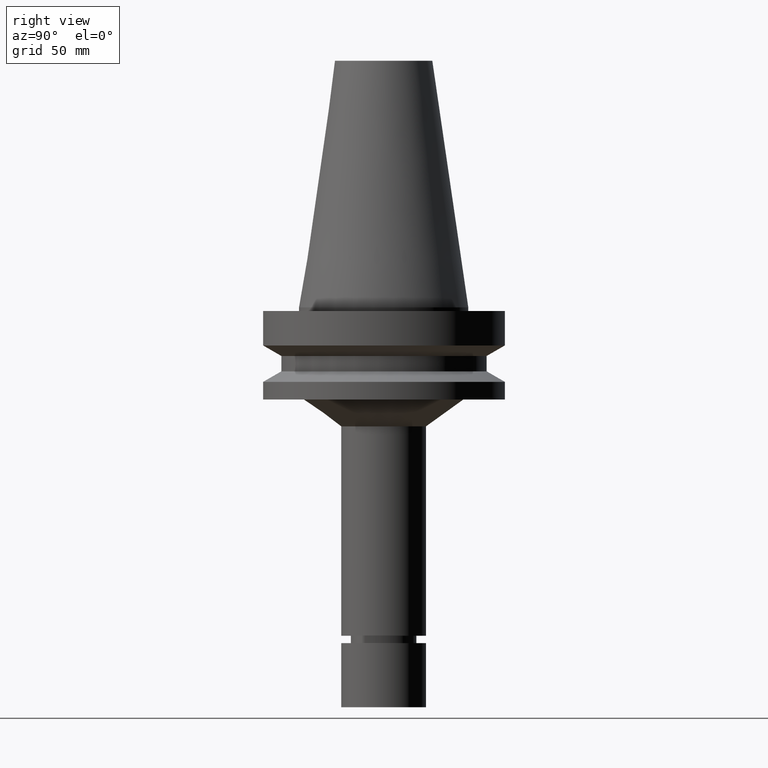
[diagram: clean part render]
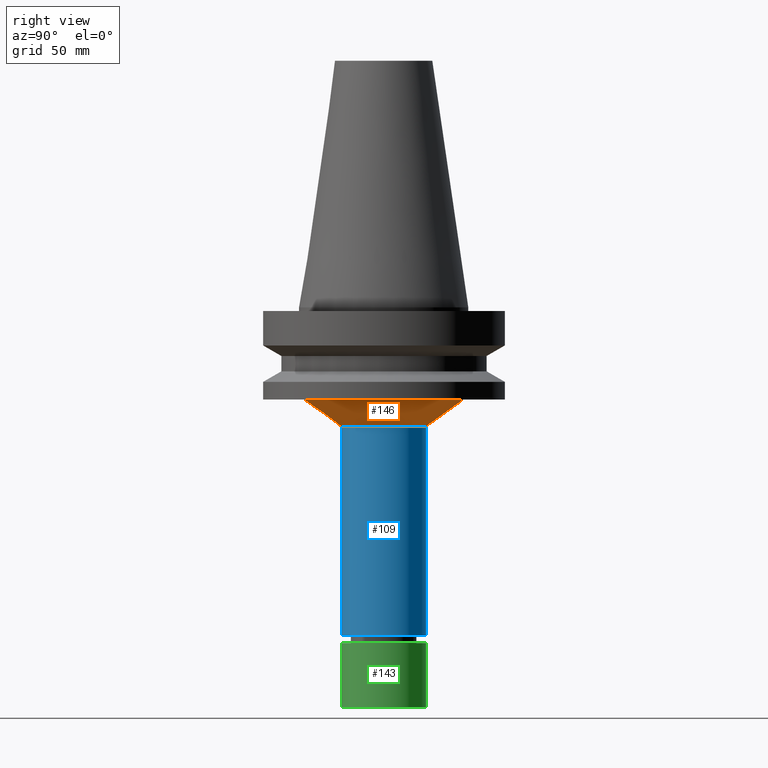
[diagram: same view with three faces highlighted in distinct colors, each labeled with its STEP entity id]
A machine part, right view with three faces highlighted in distinct colors.
Their STEP definitions:

[orange] entity #146 — the highlighted conical surface has half-angle 54.238 deg.
#98=EDGE_CURVE('Unnamed[1]',#237,#237,#238,.T.);
#134=EDGE_CURVE('Unnamed[1]',#291,#291,#292,.T.);
#146=ADVANCED_FACE('Unnamed[1]',(#309,#310),#311,.T.);
#237=VERTEX_POINT('',#422);
#238=CIRCLE('',#423,17.5000000000006);
#291=VERTEX_POINT('',#489);
#292=CIRCLE('',#490,32.8637797684183);
#309=FACE_BOUND('',#512,.T.);
#310=FACE_BOUND('',#513,.T.);
#311=CONICAL_SURFACE('',#514,25.1818898842094,0.946630035979765);
#422=CARTESIAN_POINT('',(3.00438088139649E-015,17.5000000000006,-49.0652632822501));
#423=AXIS2_PLACEMENT_3D('',#621,#622,#623);
#489=CARTESIAN_POINT('',(2.32682891837996E-015,32.8637797684183,-37.9999999999998));
#490=AXIS2_PLACEMENT_3D('',#680,#681,#682);
#512=EDGE_LOOP('',(#699));
#513=EDGE_LOOP('',(#700));
#514=AXIS2_PLACEMENT_3D('',#701,#702,#703);
#621=CARTESIAN_POINT('',(3.00438088139649E-015,1.71454033549596E-014,-49.0652632822501));
#622=DIRECTION('',(-6.12323399573676E-017,-2.7226584676657E-017,1.0));
#623=DIRECTION('',(-6.4943002195663E-033,1.0,2.7226584676657E-017));
#680=CARTESIAN_POINT('',(2.32682891837996E-015,1.68441340272361E-014,-37.9999999999998));
#681=DIRECTION('',(-6.12323399573676E-017,-2.72265846766754E-017,1.0));
#682=DIRECTION('',(-6.49430021957116E-033,1.0,2.72265846766754E-017));
#699=ORIENTED_EDGE('',*,*,#134,.F.);
#700=ORIENTED_EDGE('',*,*,#98,.T.);
#701=CARTESIAN_POINT('',(2.66560489988822E-015,1.69947686910979E-014,-43.532631641125));
#702=DIRECTION('',(-6.12323399573677E-017,-2.7226584676669E-017,1.0));
#703=DIRECTION('',(-6.49430021956235E-033,1.0,2.7226584676669E-017));

[blue] entity #109 — the highlighted cylindrical surface (bore or boss wall) has radius 17.5 mm, axis along (-0, -0, 1).
#98=EDGE_CURVE('Unnamed[1]',#237,#237,#238,.T.);
#109=ADVANCED_FACE('Unnamed[1]',(#252,#253),#254,.T.);
#120=EDGE_CURVE('Unnamed[1]',#269,#269,#270,.T.);
#237=VERTEX_POINT('',#422);
#238=CIRCLE('',#423,17.5000000000006);
#252=FACE_BOUND('',#440,.T.);
#253=FACE_BOUND('',#441,.T.);
#254=CYLINDRICAL_SURFACE('',#442,17.4999999999996);
#269=VERTEX_POINT('',#462);
#270=CIRCLE('',#463,17.4999999999986);
#422=CARTESIAN_POINT('',(3.00438088139649E-015,17.5000000000006,-49.0652632822501));
#423=AXIS2_PLACEMENT_3D('',#621,#622,#623);
#440=EDGE_LOOP('',(#635));
#441=EDGE_LOOP('',(#636));
#442=AXIS2_PLACEMENT_3D('',#637,#638,#639);
#462=CARTESIAN_POINT('',(8.29698206422331E-015,17.4999999999986,-135.5));
#463=AXIS2_PLACEMENT_3D('',#654,#655,#656);
#621=CARTESIAN_POINT('',(3.00438088139649E-015,1.71454033549596E-014,-49.0652632822501));
#622=DIRECTION('',(-6.12323399573676E-017,-2.7226584676657E-017,1.0));
#623=DIRECTION('',(-6.4943002195663E-033,1.0,2.7226584676657E-017));
#635=ORIENTED_EDGE('',*,*,#98,.F.);
#636=ORIENTED_EDGE('',*,*,#120,.T.);
#637=CARTESIAN_POINT('',(5.6506814728099E-015,1.83220646940841E-014,-92.282631641125));
#638=DIRECTION('',(-6.12323399573677E-017,-2.72265846766585E-017,1.0));
#639=DIRECTION('',(-6.49430021956667E-033,1.0,2.72265846766585E-017));
#654=CARTESIAN_POINT('',(8.29698206422331E-015,1.94987260332085E-014,-135.5));
#655=DIRECTION('',(-6.12323399573677E-017,-2.72265846766601E-017,1.0));
#656=DIRECTION('',(-6.49430021956705E-033,1.0,2.72265846766601E-017));

[green] entity #143 — the highlighted cylindrical surface (bore or boss wall) has radius 17.5 mm, axis along (0, 0, -1).
#91=EDGE_CURVE('Unnamed[1]',#226,#226,#227,.T.);
#143=ADVANCED_FACE('Unnamed[1]',(#304,#305),#306,.T.);
#175=EDGE_CURVE('Unnamed[1]',#354,#354,#355,.T.);
#226=VERTEX_POINT('',#408);
#227=CIRCLE('',#409,17.5);
#304=FACE_BOUND('',#506,.T.);
#305=FACE_BOUND('',#507,.T.);
#306=CYLINDRICAL_SURFACE('',#508,17.5);
#354=VERTEX_POINT('',#567);
#355=CIRCLE('',#568,17.5);
#408=CARTESIAN_POINT('',(1.01033360929657E-014,17.5,-165.0));
#409=AXIS2_PLACEMENT_3D('',#609,#610,#611);
#506=EDGE_LOOP('',(#693));
#507=EDGE_LOOP('',(#694));
#508=AXIS2_PLACEMENT_3D('',#695,#696,#697);
#567=CARTESIAN_POINT('',(8.48068001842678E-015,17.5,-138.500015258789));
#568=AXIS2_PLACEMENT_3D('',#749,#750,#751);
#609=CARTESIAN_POINT('',(1.01033360929657E-014,2.03019102811694E-014,-165.0));
#610=DIRECTION('',(6.12323399573677E-017,2.722658467664E-017,-1.0));
#611=DIRECTION('',(-6.4943002195671E-033,1.0,2.722658467664E-017));
#693=ORIENTED_EDGE('',*,*,#91,.F.);
#694=ORIENTED_EDGE('',*,*,#175,.T.);
#695=CARTESIAN_POINT('',(9.29200805569622E-015,1.99411582419263E-014,-151.750007629394));
#696=DIRECTION('',(6.12323399573677E-017,2.722658467664E-017,-1.0));
#697=DIRECTION('',(-6.4943002195671E-033,1.0,2.722658467664E-017));
#749=CARTESIAN_POINT('',(8.48068001842678E-015,1.95804062026832E-014,-138.500015258789));
#750=DIRECTION('',(6.12323399573677E-017,2.722658467664E-017,-1.0));
#751=DIRECTION('',(-6.4943002195671E-033,1.0,2.722658467664E-017));